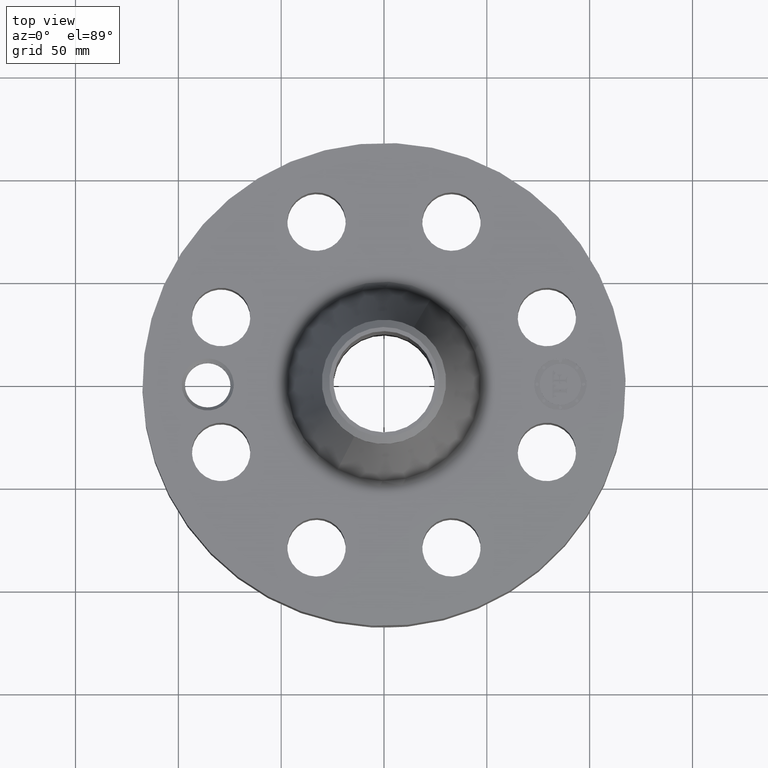
[diagram: clean part render]
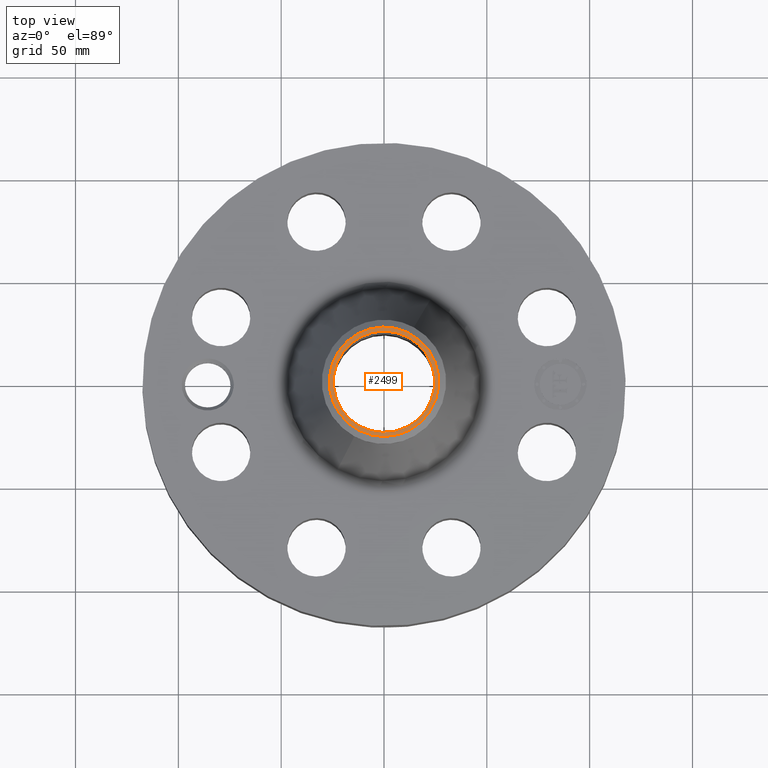
[diagram: same view with one face highlighted and labeled with its STEP entity id]
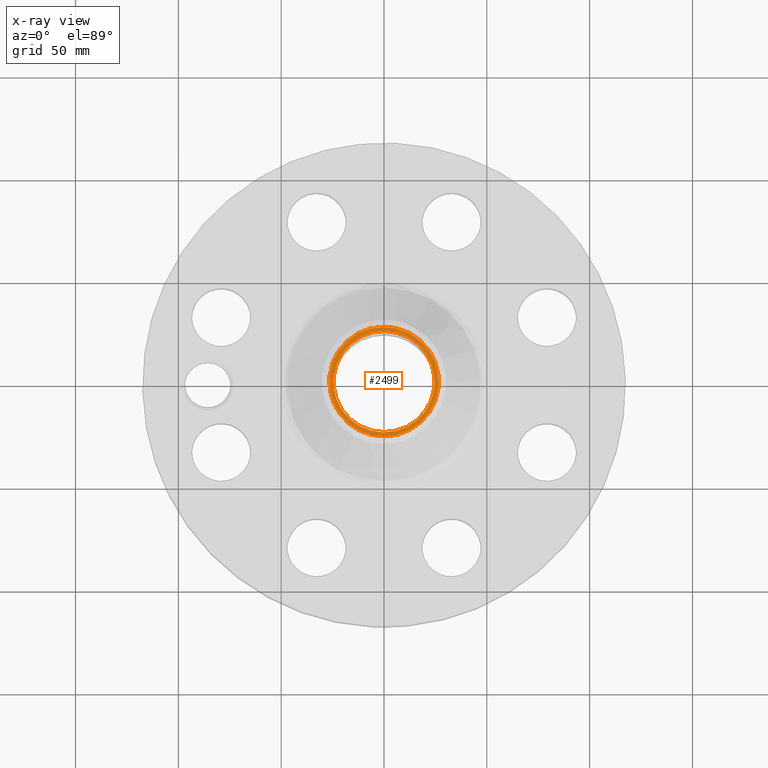
[diagram: x-ray of the same camera — body ghosted, the highlighted face saturated]
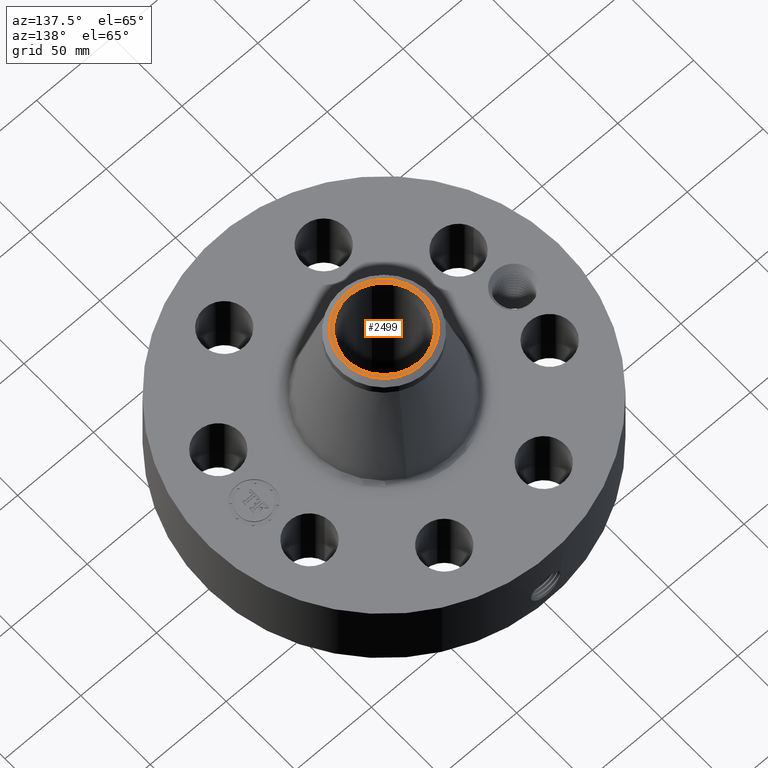
[diagram: same view with one face highlighted and labeled with its STEP entity id]
A machine part, top view. The second image highlights one B-rep face of the part: STEP entity #2499.
The next image is the same camera in x-ray: the body ghosted, the highlighted face saturated — about 0% of this face is hidden behind the body in this view.
A second angle (auxiliary view) of the same face is appended — the face is thin or edge-on in the first view.
In plain terms, the highlighted planar face has unit normal (0, 0, -1).
Its self-contained STEP definition (entity closure, byte-faithful):
#1271=AXIS2_PLACEMENT_3D('Circle Axis2P3D',#1269,#1270,$) ;
#1339=AXIS2_PLACEMENT_3D('Circle Axis2P3D',#1337,#1338,$) ;
#2475=AXIS2_PLACEMENT_3D('Plane Axis2P3D',#2472,#2473,#2474) ;
#2479=AXIS2_PLACEMENT_3D('Circle Axis2P3D',#2477,#2478,$) ;
#2488=AXIS2_PLACEMENT_3D('Circle Axis2P3D',#2486,#2487,$) ;
#1269=CARTESIAN_POINT('Axis2P3D Location',(0.,0.,5.25000000002)) ;
#1273=CARTESIAN_POINT('Vertex',(0.464803059679,0.850816293756,5.25000000002)) ;
#1275=CARTESIAN_POINT('Vertex',(-0.464803059679,-0.850816293756,5.25000000002)) ;
#1337=CARTESIAN_POINT('Axis2P3D Location',(0.,0.,5.25000000002)) ;
#2472=CARTESIAN_POINT('Axis2P3D Location',(0.,1.19,5.25000000002)) ;
#2477=CARTESIAN_POINT('Axis2P3D Location',(0.,0.,5.25000000002)) ;
#2481=CARTESIAN_POINT('Vertex',(0.502553102088,-0.919917282881,5.25000000002)) ;
#2483=CARTESIAN_POINT('Vertex',(-0.502553102088,0.919917282881,5.25000000002)) ;
#2486=CARTESIAN_POINT('Axis2P3D Location',(0.,0.,5.25000000002)) ;
#1270=DIRECTION('Axis2P3D Direction',(0.,0.,-0.0393700787402)) ;
#1338=DIRECTION('Axis2P3D Direction',(0.,0.,-0.0393700787402)) ;
#2473=DIRECTION('Axis2P3D Direction',(0.,0.,-0.0393700787402)) ;
#2474=DIRECTION('Axis2P3D XDirection',(0.0393700787402,0.,0.)) ;
#2478=DIRECTION('Axis2P3D Direction',(0.,0.,-0.0393700787402)) ;
#2487=DIRECTION('Axis2P3D Direction',(0.,0.,-0.0393700787402)) ;
#2492=ORIENTED_EDGE('',*,*,#2485,.T.) ;
#2493=ORIENTED_EDGE('',*,*,#2490,.T.) ;
#2496=ORIENTED_EDGE('',*,*,#1341,.T.) ;
#2497=ORIENTED_EDGE('',*,*,#1277,.T.) ;
#2498=FACE_BOUND('',#2495,.T.) ;
#2499=ADVANCED_FACE('PartBody',(#2494,#2498),#2476,.F.) ;
#1272=CIRCLE('generated circle',#1271,0.969500000004) ;
#1340=CIRCLE('generated circle',#1339,0.969500000004) ;
#2480=CIRCLE('generated circle',#2479,1.04824015748) ;
#2489=CIRCLE('generated circle',#2488,1.04824015748) ;
#1277=EDGE_CURVE('',#1274,#1276,#1272,.T.) ;
#1341=EDGE_CURVE('',#1276,#1274,#1340,.T.) ;
#2485=EDGE_CURVE('',#2482,#2484,#2480,.F.) ;
#2490=EDGE_CURVE('',#2484,#2482,#2489,.F.) ;
#2491=EDGE_LOOP('',(#2492,#2493)) ;
#2495=EDGE_LOOP('',(#2496,#2497)) ;
#2494=FACE_OUTER_BOUND('',#2491,.T.) ;
#2476=PLANE('',#2475) ;
#1274=VERTEX_POINT('',#1273) ;
#1276=VERTEX_POINT('',#1275) ;
#2482=VERTEX_POINT('',#2481) ;
#2484=VERTEX_POINT('',#2483) ;